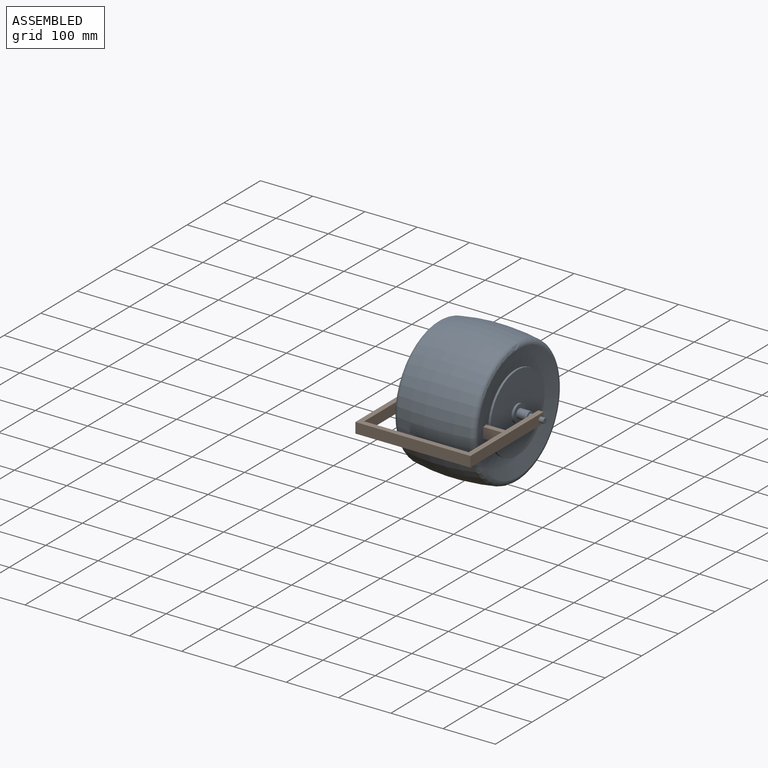
[diagram: assembled view]
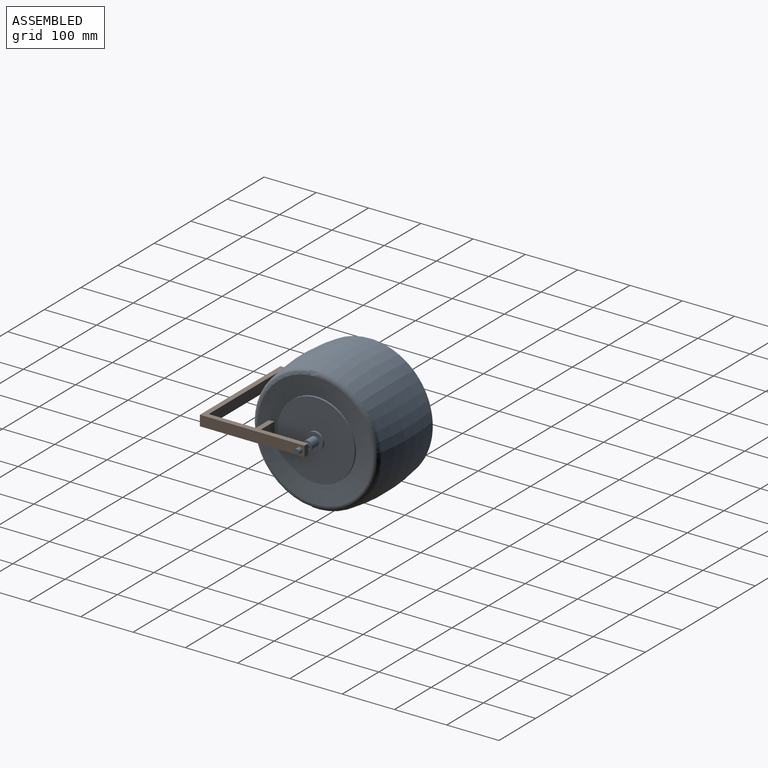
[diagram: assembled view, second angle]
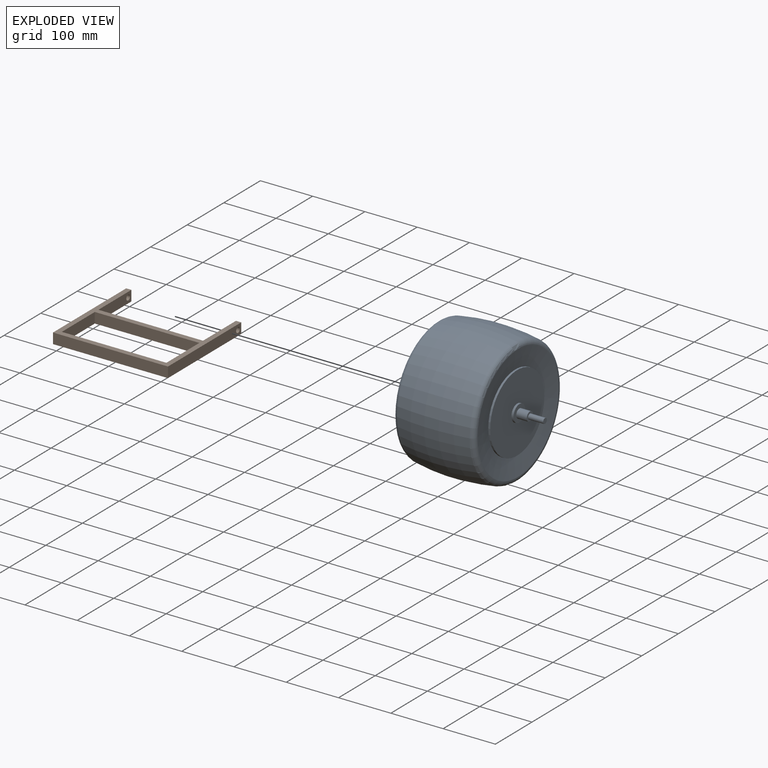
[diagram: exploded view]
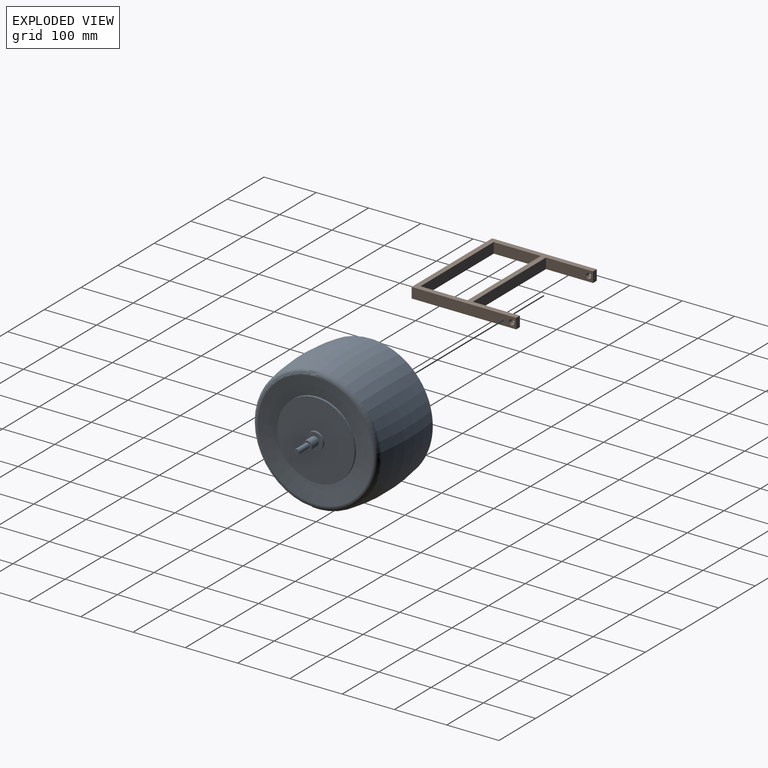
[diagram: exploded view, second angle]
ASSEMBLY  parts=2 mates=2
PART A: 21 faces, bbox 260x262x262 mm
  f0: plane 147.97x147.97mm, normal (1,0,0), area 16379.6mm2, adj f1,f20
  f1: cylinder r=73.99mm len=147.97mm, axis (-1,0,0), area 1754.1mm2, adj f0,f2
  f2: cone r=73.99mm half-angle=81.9deg, axis (1,0,0), area 21425.7mm2, adj f1,f3
  f3: torus R=110.97mm, axis (-1,0,0), area 10556.4mm2, adj f2,f4
  f4: revolved ~253.51x253.51mm, area 108640mm2, adj f3,f5
  f5: torus R=111.04mm, axis (-1,0,0), area 10664.2mm2, adj f4,f6
  f6: cone r=70.64mm half-angle=81.1deg, axis (-1,0,0), area 22967.4mm2, adj f5,f7
  f7: cylinder r=70.64mm len=141.27mm, axis (-1,0,0), area 1830.5mm2, adj f6,f8
  f8: plane 141.27x141.27mm, normal (-1,0,0), area 13783.5mm2, adj f7,f9
  f9: cylinder r=24.54mm len=49.08mm, axis (-1,0,0), area 2312.8mm2, adj f8,f10
  f10: plane 49.08x49.08mm, normal (-1,0,0), area 1718.1mm2, adj f9,f11
  f11: cylinder r=7.44mm len=14.87mm, axis (-1,0,0), area 467.1mm2, adj f10,f12
  f12: plane 14.87x14.87mm, normal (-1,0,0), area 86.5mm2, adj f11,f13
  f13: cylinder r=5.27mm len=31.09mm, axis (-1,0,0), area 1029.4mm2, adj f12,f14
  f14: plane 10.54x10.54mm, normal (-1,0,0), area 87.2mm2, adj f13
  f15: plane 10x10mm, normal (1,0,0), area 78.5mm2, adj f16
  f16: cylinder r=5mm len=28.91mm, axis (-1,0,0), area 908.3mm2, adj f15,f17
  f17: plane 17.29x17.29mm, normal (1,0,0), area 156.3mm2, adj f16,f18
  f18: cylinder r=8.65mm len=20mm, axis (-1,0,0), area 1086.5mm2, adj f17,f19
  f19: plane 32.26x32.26mm, normal (1,0,0), area 582.6mm2, adj f18,f20
  f20: cylinder r=16.13mm len=32.26mm, axis (-1,0,0), area 416.8mm2, adj f0,f19
PART B: 16 faces, bbox 220x200x20 mm
  f0: plane 200x20mm, normal (0,1,0), area 4000mm2, adj f1,f11,f12,f13
  f1: plane 90x20mm, normal (1,0,0), area 1721.5mm2, adj f0,f2,f12,f13,f15
  f2: plane 20x10mm, normal (0,1,0), area 200mm2, adj f1,f3,f12,f13
  f3: plane 200x20mm, normal (-1,0,0), area 3921.5mm2, adj f2,f4,f12,f13,f15
  f4: plane 220x20mm, normal (0,-1,0), area 4400mm2, adj f3,f5,f12,f13
  f5: plane 200x20mm, normal (1,0,0), area 3921.5mm2, adj f4,f6,f12,f13,f14
  f6: plane 20x10mm, normal (0,1,0), area 200mm2, adj f5,f11,f12,f13
  f7: plane 90x20mm, normal (1,0,0), area 1800mm2, adj f8,f10,f12,f13
  f8: plane 200x20mm, normal (0,-1,0), area 4000mm2, adj f7,f9,f12,f13
  f9: plane 90x20mm, normal (-1,0,0), area 1800mm2, adj f8,f10,f12,f13
  f10: plane 200x20mm, normal (0,1,0), area 4000mm2, adj f7,f9,f12,f13
  f11: plane 90x20mm, normal (-1,0,0), area 1721.5mm2, adj f0,f6,f12,f13,f14
  f12: plane 220x200mm, normal (0,0,1), area 8000mm2, adj f0,f1,f2,f3,f4,f5,f6,f7
  f13: plane 220x200mm, normal (0,0,-1), area 8000mm2, adj f0,f1,f2,f3,f4,f5,f6,f7
  f14: cylinder r=5mm len=10mm, axis (1,0,0), area 314.2mm2, adj f5,f11
  f15: cylinder r=5mm len=10mm, axis (1,0,0), area 314.2mm2, adj f1,f3
PLACE A t=(-130.96,-123.8,57.24)mm
PLACE B t=(-33.43,-127.83,47.24)mm
MATE planar A.f2 <-> B.f1  axis (-1,0,0) through (-78.11,-8.68,57.24)mm
MATE cylindrical B.f14 <-> A.f2  axis (1,0,0) through (-83.11,-8.68,57.24)mm
